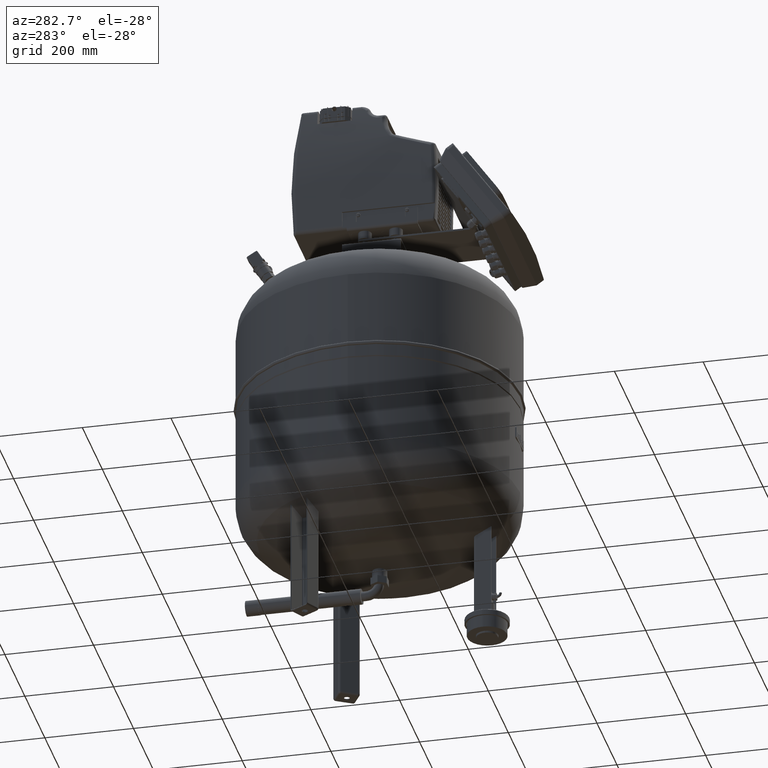
[diagram: clean part render]
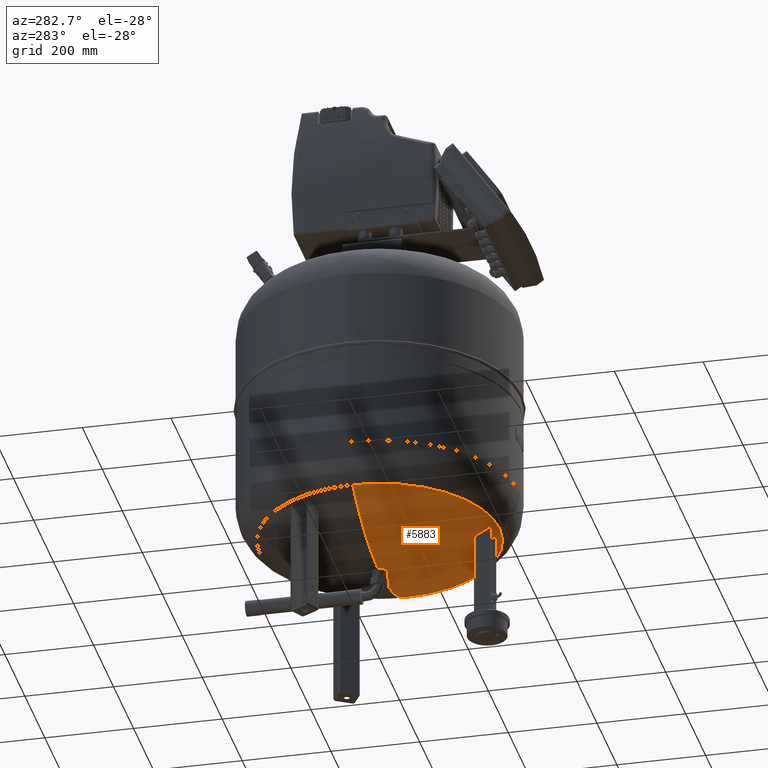
[diagram: same view with one face highlighted and labeled with its STEP entity id]
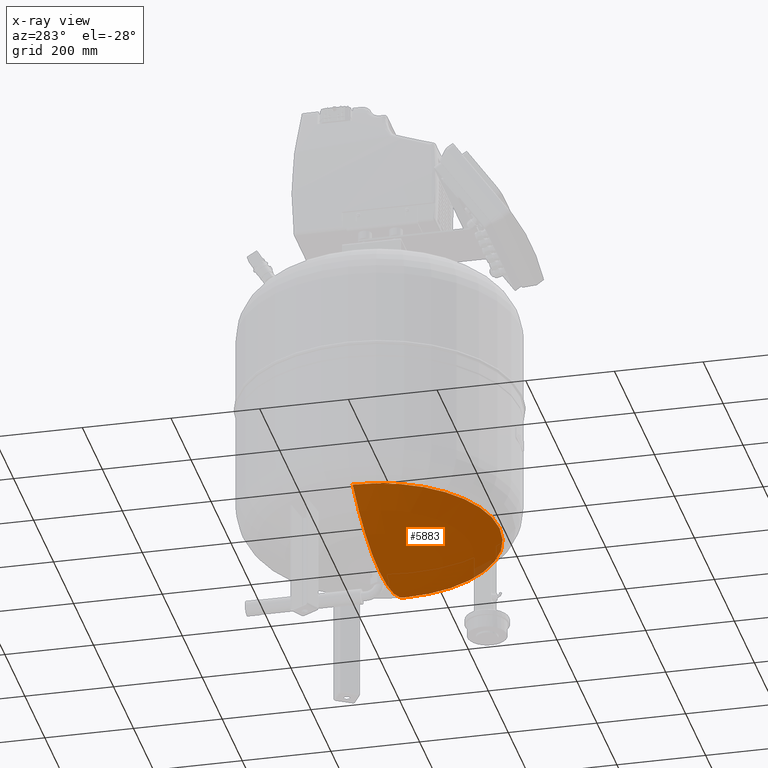
[diagram: x-ray of the same camera — body ghosted, the highlighted face saturated]
A machine part, auxiliary view. The second image highlights one B-rep face of the part: STEP entity #5883.
The next image is the same camera in x-ray: the body ghosted, the highlighted face saturated — about 1% of this face is hidden behind the body in this view.
In plain terms, the highlighted spherical surface has radius 509 mm.
Its self-contained STEP definition (entity closure, byte-faithful):
#5805=CARTESIAN_POINT('',(8.065826E-015,-270.63902439024383,268.91356031870237));
#5806=VERTEX_POINT('',#5805);
#5831=CARTESIAN_POINT('',(-270.63902439024383,-1.431249E-014,268.91356031870242));
#5832=VERTEX_POINT('',#5831);
#5840=CARTESIAN_POINT('',(-7.495146E-015,-1.431249E-014,268.91356031870242));
#5841=DIRECTION('',(0.0,0.0,1.0));
#5842=DIRECTION('',(-1.0,0.0,0.0));
#5843=AXIS2_PLACEMENT_3D('',#5840,#5841,#5842);
#5844=CIRCLE('',#5843,270.63902439024383);
#5845=EDGE_CURVE('',#5832,#5806,#5844,.T.);
#5850=CARTESIAN_POINT('',(-1.005746E-013,-9.350178E-014,700.0));
#5851=DIRECTION('',(0.0,0.0,1.0));
#5852=DIRECTION('',(1.0,0.0,0.0));
#5853=AXIS2_PLACEMENT_3D('',#5850,#5851,#5852);
#5854=SPHERICAL_SURFACE('',#5853,509.00000000000006);
#5855=CARTESIAN_POINT('',(270.63902439024383,-9.350178E-014,268.91356031870237));
#5856=VERTEX_POINT('',#5855);
#5857=CARTESIAN_POINT('',(-1.317408E-013,-9.350178E-014,190.99999999999994));
#5858=VERTEX_POINT('',#5857);
#5859=CARTESIAN_POINT('',(-1.005746E-013,-9.350178E-014,700.0));
#5860=DIRECTION('',(0.0,1.0,0.0));
#5861=DIRECTION('',(1.0,0.0,0.0));
#5862=AXIS2_PLACEMENT_3D('',#5859,#5860,#5861);
#5863=CIRCLE('',#5862,509.00000000000006);
#5864=EDGE_CURVE('',#5856,#5858,#5863,.T.);
#5865=ORIENTED_EDGE('',*,*,#5864,.F.);
#5866=CARTESIAN_POINT('',(-7.495146E-015,-1.431249E-014,268.91356031870242));
#5867=DIRECTION('',(0.0,0.0,1.0));
#5868=DIRECTION('',(-1.0,0.0,0.0));
#5869=AXIS2_PLACEMENT_3D('',#5866,#5867,#5868);
#5870=CIRCLE('',#5869,270.63902439024383);
#5871=EDGE_CURVE('',#5806,#5856,#5870,.T.);
#5872=ORIENTED_EDGE('',*,*,#5871,.F.);
#5873=ORIENTED_EDGE('',*,*,#5845,.F.);
#5874=CARTESIAN_POINT('',(-1.005746E-013,-9.350178E-014,700.0));
#5875=DIRECTION('',(0.0,-1.0,0.0));
#5876=DIRECTION('',(-1.0,0.0,0.0));
#5877=AXIS2_PLACEMENT_3D('',#5874,#5875,#5876);
#5878=CIRCLE('',#5877,509.00000000000006);
#5879=EDGE_CURVE('',#5832,#5858,#5878,.T.);
#5880=ORIENTED_EDGE('',*,*,#5879,.T.);
#5881=EDGE_LOOP('',(#5865,#5872,#5873,#5880));
#5882=FACE_OUTER_BOUND('',#5881,.T.);
#5883=ADVANCED_FACE('',(#5882),#5854,.T.);